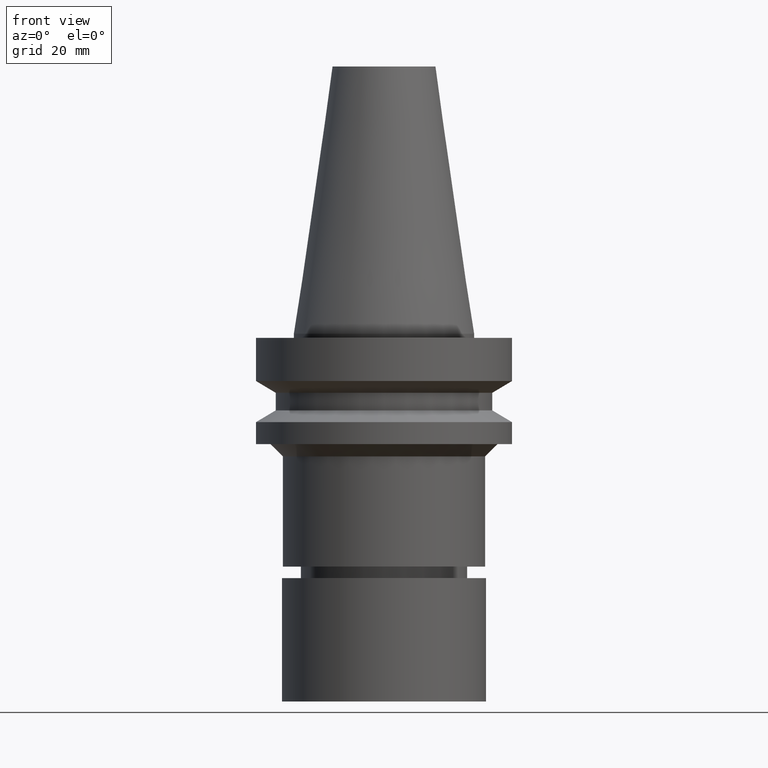
[diagram: clean part render]
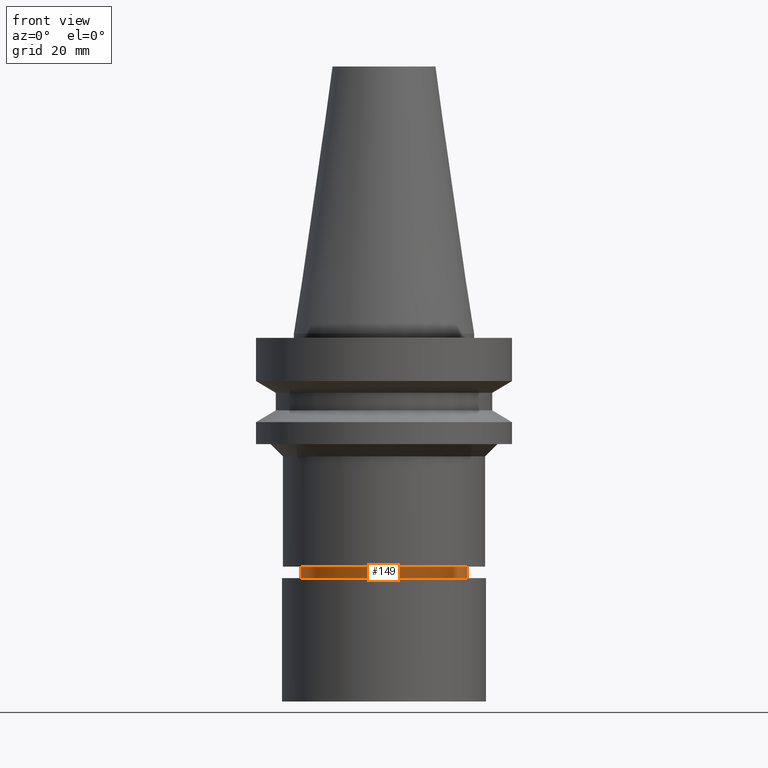
[diagram: same view with one face highlighted and labeled with its STEP entity id]
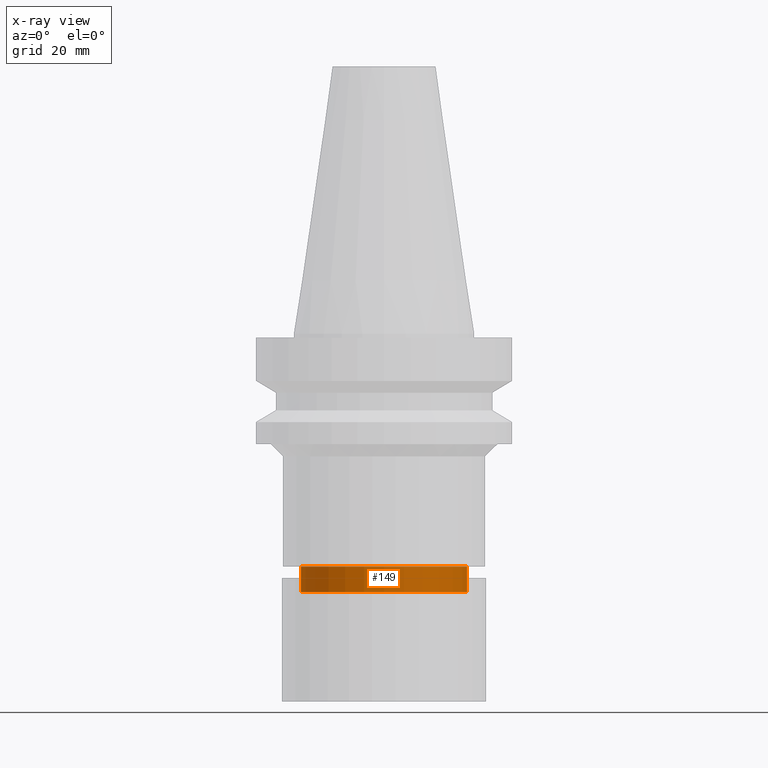
[diagram: x-ray of the same camera — body ghosted, the highlighted face saturated]
A machine part, front view. The second image highlights one B-rep face of the part: STEP entity #149.
The next image is the same camera in x-ray: the body ghosted, the highlighted face saturated — about 0% of this face is hidden behind the body in this view.
In plain terms, the highlighted cylindrical surface (bore or boss wall) has radius 20.5 mm, axis along (0, -0, -1).
Its self-contained STEP definition (entity closure, byte-faithful):
#105=EDGE_CURVE('Unnamed[1]',#248,#248,#249,.T.);
#114=EDGE_CURVE('Unnamed[1]',#262,#262,#263,.T.);
#149=ADVANCED_FACE('Unnamed[1]',(#314,#315),#316,.T.);
#248=VERTEX_POINT('',#436);
#249=CIRCLE('',#437,20.499999999991);
#262=VERTEX_POINT('',#454);
#263=CIRCLE('',#455,20.5000000000011);
#314=FACE_BOUND('',#518,.T.);
#315=FACE_BOUND('',#519,.T.);
#316=CYLINDRICAL_SURFACE('',#520,20.4999999999961);
#436=CARTESIAN_POINT('',(3.49025302591329E-015,20.4999999999911,-57.0001575694044));
#437=AXIS2_PLACEMENT_3D('',#633,#634,#635);
#454=CARTESIAN_POINT('',(3.87058698165691E-015,20.5000000000011,-63.211482434801));
#455=AXIS2_PLACEMENT_3D('',#648,#649,#650);
#518=EDGE_LOOP('',(#705));
#519=EDGE_LOOP('',(#706));
#520=AXIS2_PLACEMENT_3D('',#707,#708,#709);
#633=CARTESIAN_POINT('',(3.49025302591329E-015,4.68135457969201E-014,-57.0001575694044));
#634=DIRECTION('',(6.12323399573677E-017,-2.45986715532896E-016,-1.0));
#635=DIRECTION('',(1.02351894597376E-032,1.0,-2.45986715532896E-016));
#648=CARTESIAN_POINT('',(3.87058698165691E-015,4.52856423941733E-014,-63.211482434801));
#649=DIRECTION('',(6.12323399573677E-017,-2.45986715532933E-016,-1.0));
#650=DIRECTION('',(1.0235189459737E-032,1.0,-2.45986715532933E-016));
#705=ORIENTED_EDGE('',*,*,#114,.F.);
#706=ORIENTED_EDGE('',*,*,#105,.T.);
#707=CARTESIAN_POINT('',(3.6804200037851E-015,4.60495940955467E-014,-60.1058200021027));
#708=DIRECTION('',(6.12323399573677E-017,-2.45986715532914E-016,-1.0));
#709=DIRECTION('',(1.02351894597439E-032,1.0,-2.45986715532914E-016));